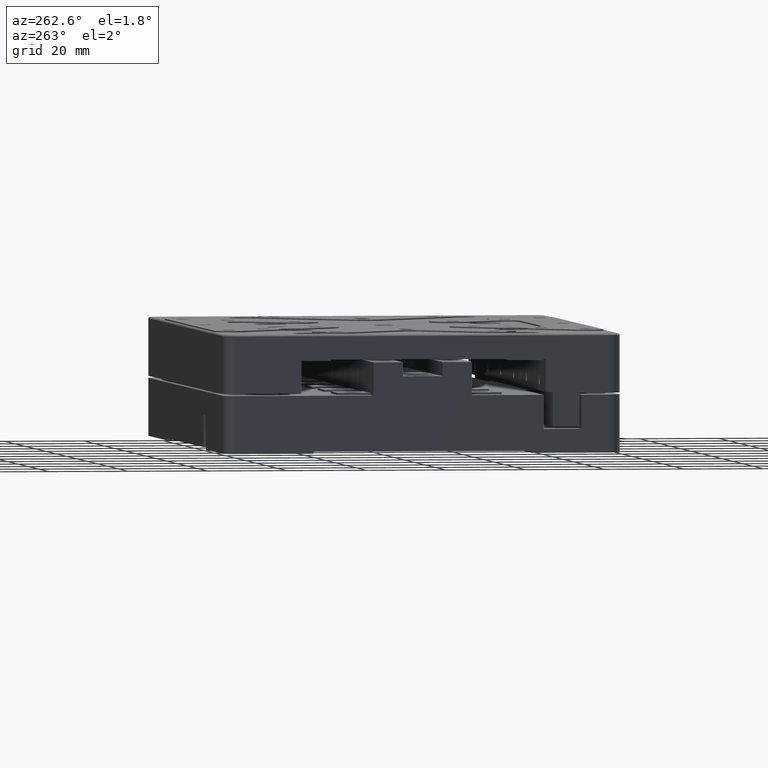
[diagram: clean part render]
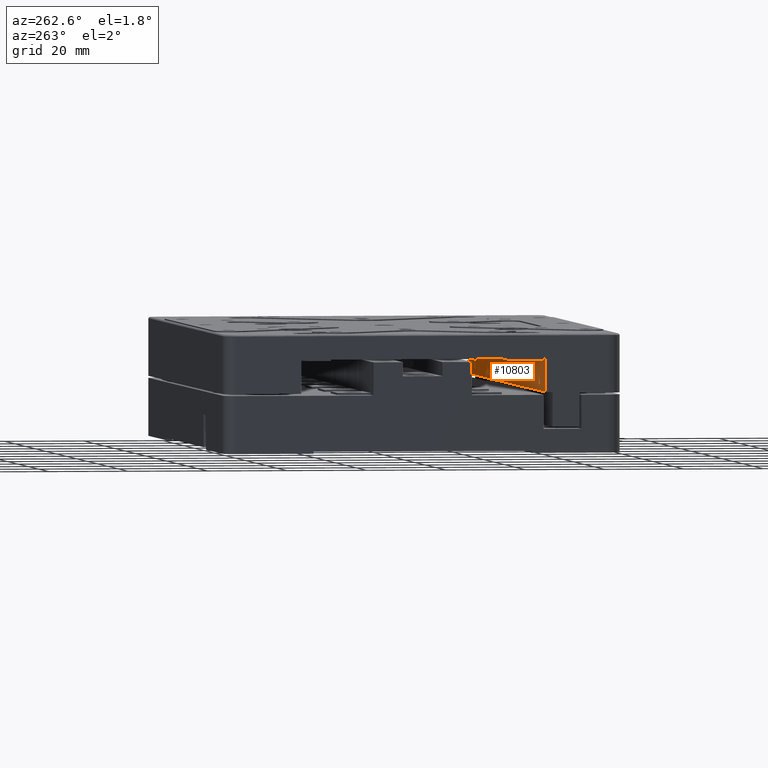
[diagram: same view with one face highlighted and labeled with its STEP entity id]
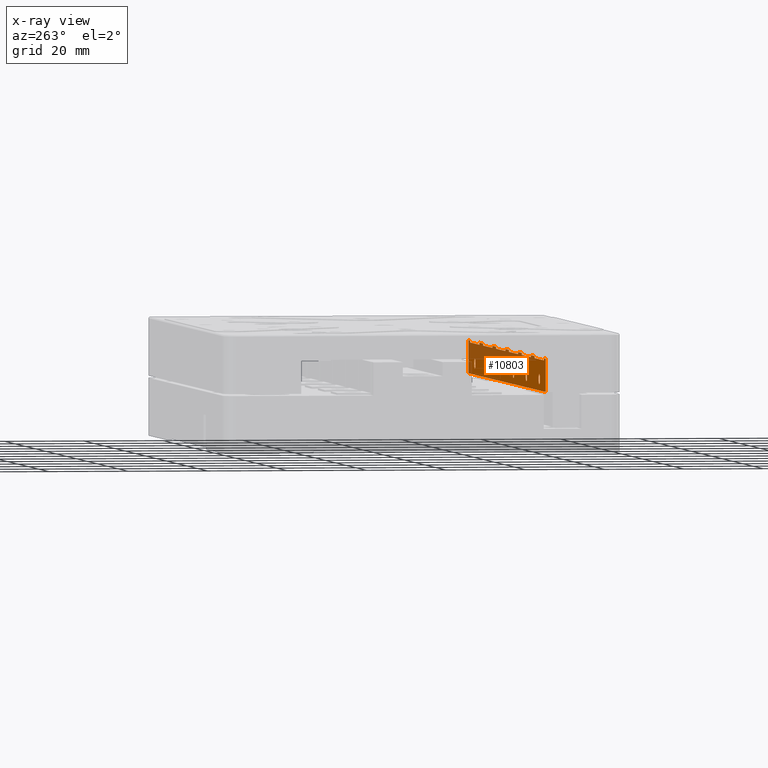
[diagram: x-ray of the same camera — body ghosted, the highlighted face saturated]
A machine part, auxiliary view. The second image highlights one B-rep face of the part: STEP entity #10803.
The next image is the same camera in x-ray: the body ghosted, the highlighted face saturated — about 29% of this face is hidden behind the body in this view.
In plain terms, the highlighted planar face has unit normal (0, 1, 0).
Its self-contained STEP definition (entity closure, byte-faithful):
#64 = LINE ( 'NONE', #10393, #14369 ) ;
#188 = DIRECTION ( 'NONE',  ( -1.000000000000000000, 0.000000000000000000, -0.000000000000000000 ) ) ;
#242 = DIRECTION ( 'NONE',  ( 1.000000000000000000, 0.000000000000000000, -0.000000000000000000 ) ) ;
#261 = CARTESIAN_POINT ( 'NONE',  ( -75.00000000000000000, -31.00000000000000000, 8.500000000000000000 ) ) ;
#298 = CARTESIAN_POINT ( 'NONE',  ( -75.00000000000000000, -31.00000000000000000, 9.000000000000001776 ) ) ;
#316 = EDGE_CURVE ( 'NONE', #2679, #4417, #14301, .T. ) ;
#375 = AXIS2_PLACEMENT_3D ( 'NONE', #10439, #2030, #15779 ) ;
#449 = LINE ( 'NONE', #10671, #16185 ) ;
#465 = AXIS2_PLACEMENT_3D ( 'NONE', #4620, #9954, #8143 ) ;
#557 = ORIENTED_EDGE ( 'NONE', *, *, #19980, .F. ) ;
#726 = VERTEX_POINT ( 'NONE', #12462 ) ;
#835 = VERTEX_POINT ( 'NONE', #3231 ) ;
#958 = EDGE_CURVE ( 'NONE', #19620, #16150, #14110, .T. ) ;
#986 = VERTEX_POINT ( 'NONE', #7913 ) ;
#1027 = ORIENTED_EDGE ( 'NONE', *, *, #6979, .F. ) ;
#1146 = DIRECTION ( 'NONE',  ( -1.000000000000000000, 0.000000000000000000, -0.000000000000000000 ) ) ;
#1425 = LINE ( 'NONE', #15276, #15694 ) ;
#1429 = EDGE_CURVE ( 'NONE', #726, #14277, #19222, .T. ) ;
#1438 = CARTESIAN_POINT ( 'NONE',  ( -71.50000000000001421, -31.00000000000000000, 9.000000000000001776 ) ) ;
#1511 = CARTESIAN_POINT ( 'NONE',  ( 75.00000000000000000, -31.00000000000000000, 9.000000000000001776 ) ) ;
#1542 = CARTESIAN_POINT ( 'NONE',  ( -75.00000000000000000, -31.00000000000000000, 0.6999999999999999556 ) ) ;
#1598 = FACE_BOUND ( 'NONE', #9326, .T. ) ;
#1788 = ORIENTED_EDGE ( 'NONE', *, *, #1429, .T. ) ;
#1799 = ORIENTED_EDGE ( 'NONE', *, *, #21870, .T. ) ;
#1824 = FACE_BOUND ( 'NONE', #12775, .T. ) ;
#1886 = CARTESIAN_POINT ( 'NONE',  ( 62.50000000000000000, -31.00000000000000000, 2.250000000000000444 ) ) ;
#1949 = VECTOR ( 'NONE', #4679, 1000.000000000000000 ) ;
#2030 = DIRECTION ( 'NONE',  ( 0.000000000000000000, -1.000000000000000000, 0.000000000000000000 ) ) ;
#2038 = DIRECTION ( 'NONE',  ( -0.000000000000000000, 0.000000000000000000, -1.000000000000000000 ) ) ;
#2169 = AXIS2_PLACEMENT_3D ( 'NONE', #19275, #21296, #2330 ) ;
#2179 = LINE ( 'NONE', #5706, #8593 ) ;
#2285 = VERTEX_POINT ( 'NONE', #7108 ) ;
#2293 = VECTOR ( 'NONE', #16498, 1000.000000000000000 ) ;
#2311 = EDGE_CURVE ( 'NONE', #4061, #4061, #22104, .T. ) ;
#2330 = DIRECTION ( 'NONE',  ( 0.000000000000000000, 0.000000000000000000, -1.000000000000000000 ) ) ;
#2507 = CARTESIAN_POINT ( 'NONE',  ( -75.00000000000000000, -31.00000000000000000, 9.000000000000001776 ) ) ;
#2576 = VERTEX_POINT ( 'NONE', #20386 ) ;
#2583 = EDGE_CURVE ( 'NONE', #5188, #3755, #22078, .T. ) ;
#2679 = VERTEX_POINT ( 'NONE', #12495 ) ;
#2744 = LINE ( 'NONE', #2853, #13094 ) ;
#2853 = CARTESIAN_POINT ( 'NONE',  ( -3.500000000000003109, -31.00000000000000000, 0.5000000000000000000 ) ) ;
#2964 = CARTESIAN_POINT ( 'NONE',  ( -21.50000000000000355, -31.00000000000000000, 8.500000000000000000 ) ) ;
#2969 = CARTESIAN_POINT ( 'NONE',  ( 21.50000000000000355, -31.00000000000000000, 8.500000000000000000 ) ) ;
#2997 = ORIENTED_EDGE ( 'NONE', *, *, #8430, .T. ) ;
#3179 = ORIENTED_EDGE ( 'NONE', *, *, #16969, .T. ) ;
#3231 = CARTESIAN_POINT ( 'NONE',  ( 53.50000000000000711, -31.00000000000000000, 9.000000000000001776 ) ) ;
#3314 = FACE_BOUND ( 'NONE', #10191, .T. ) ;
#3324 = ORIENTED_EDGE ( 'NONE', *, *, #16865, .T. ) ;
#3364 = CARTESIAN_POINT ( 'NONE',  ( -28.49999999999999645, -31.00000000000000000, 9.000000000000001776 ) ) ;
#3380 = VECTOR ( 'NONE', #12177, 1000.000000000000000 ) ;
#3405 = CARTESIAN_POINT ( 'NONE',  ( -53.50000000000000000, -31.00000000000000000, 0.5000000000000000000 ) ) ;
#3426 = DIRECTION ( 'NONE',  ( -0.000000000000000000, 0.000000000000000000, -1.000000000000000000 ) ) ;
#3533 = FACE_BOUND ( 'NONE', #7468, .T. ) ;
#3559 = DIRECTION ( 'NONE',  ( -1.000000000000000000, 0.000000000000000000, -0.000000000000000000 ) ) ;
#3642 = VECTOR ( 'NONE', #6310, 1000.000000000000000 ) ;
#3755 = VERTEX_POINT ( 'NONE', #18238 ) ;
#3882 = VECTOR ( 'NONE', #3426, 1000.000000000000000 ) ;
#4061 = VERTEX_POINT ( 'NONE', #7246 ) ;
#4088 = VERTEX_POINT ( 'NONE', #2969 ) ;
#4107 = ORIENTED_EDGE ( 'NONE', *, *, #7828, .T. ) ;
#4158 = VECTOR ( 'NONE', #16368, 1000.000000000000000 ) ;
#4417 = VERTEX_POINT ( 'NONE', #19653 ) ;
#4456 = VERTEX_POINT ( 'NONE', #7932 ) ;
#4466 = ORIENTED_EDGE ( 'NONE', *, *, #2311, .T. ) ;
#4546 = VECTOR ( 'NONE', #14276, 1000.000000000000000 ) ;
#4588 = DIRECTION ( 'NONE',  ( 0.000000000000000000, -0.000000000000000000, 1.000000000000000000 ) ) ;
#4601 = VECTOR ( 'NONE', #1146, 1000.000000000000000 ) ;
#4620 = CARTESIAN_POINT ( 'NONE',  ( -62.50000000000000000, -31.00000000000000000, 3.500000000000000000 ) ) ;
#4668 = LINE ( 'NONE', #2507, #4158 ) ;
#4679 = DIRECTION ( 'NONE',  ( -0.000000000000000000, 0.000000000000000000, -1.000000000000000000 ) ) ;
#4691 = ORIENTED_EDGE ( 'NONE', *, *, #5257, .T. ) ;
#5057 = EDGE_CURVE ( 'NONE', #11553, #14841, #11038, .T. ) ;
#5100 = CIRCLE ( 'NONE', #375, 1.249999999999999778 ) ;
#5134 = FACE_BOUND ( 'NONE', #6382, .T. ) ;
#5159 = LINE ( 'NONE', #11001, #9825 ) ;
#5161 = ORIENTED_EDGE ( 'NONE', *, *, #10584, .T. ) ;
#5188 = VERTEX_POINT ( 'NONE', #8081 ) ;
#5227 = LINE ( 'NONE', #10326, #22303 ) ;
#5257 = EDGE_CURVE ( 'NONE', #4456, #17673, #2744, .T. ) ;
#5467 = PLANE ( 'NONE',  #9704 ) ;
#5557 = CIRCLE ( 'NONE', #18239, 1.249999999999999778 ) ;
#5706 = CARTESIAN_POINT ( 'NONE',  ( 71.50000000000002842, -31.00000000000000000, 0.5000000000000000000 ) ) ;
#5733 = EDGE_CURVE ( 'NONE', #9952, #10244, #9870, .T. ) ;
#5847 = EDGE_LOOP ( 'NONE', ( #21734, #18535, #3324, #6982, #1027, #22134, #2997, #9752, #22410, #10998, #7182, #3179, #557, #6379, #10167, #4691, #5906, #21101, #21706, #9804, #20064, #20364, #1788, #1799, #10631, #11173, #9981, #5161 ) ) ;
#5906 = ORIENTED_EDGE ( 'NONE', *, *, #15430, .F. ) ;
#5909 = CARTESIAN_POINT ( 'NONE',  ( -75.00000000000000000, -31.00000000000000000, 8.500000000000000000 ) ) ;
#5957 = CARTESIAN_POINT ( 'NONE',  ( 75.00000000000000000, -31.00000000000000000, 0.000000000000000000 ) ) ;
#6052 = VECTOR ( 'NONE', #4588, 1000.000000000000000 ) ;
#6145 = EDGE_CURVE ( 'NONE', #986, #986, #6996, .T. ) ;
#6310 = DIRECTION ( 'NONE',  ( 1.000000000000000000, 0.000000000000000000, -0.000000000000000000 ) ) ;
#6379 = ORIENTED_EDGE ( 'NONE', *, *, #958, .T. ) ;
#6382 = EDGE_LOOP ( 'NONE', ( #4107 ) ) ;
#6486 = CARTESIAN_POINT ( 'NONE',  ( -75.00000000000000000, -31.00000000000000000, 9.000000000000001776 ) ) ;
#6660 = VERTEX_POINT ( 'NONE', #7495 ) ;
#6804 = DIRECTION ( 'NONE',  ( 0.000000000000000000, -0.000000000000000000, 1.000000000000000000 ) ) ;
#6979 = EDGE_CURVE ( 'NONE', #7461, #4417, #5227, .T. ) ;
#6982 = ORIENTED_EDGE ( 'NONE', *, *, #316, .T. ) ;
#6996 = CIRCLE ( 'NONE', #465, 1.249999999999999778 ) ;
#7108 = CARTESIAN_POINT ( 'NONE',  ( 75.00000000000000000, -31.00000000000000000, 0.6999999999999999556 ) ) ;
#7182 = ORIENTED_EDGE ( 'NONE', *, *, #2583, .T. ) ;
#7199 = EDGE_CURVE ( 'NONE', #7461, #13367, #12569, .T. ) ;
#7246 = CARTESIAN_POINT ( 'NONE',  ( 12.50000000000000000, -31.00000000000000000, 2.250000000000000444 ) ) ;
#7383 = DIRECTION ( 'NONE',  ( 0.000000000000000000, -1.000000000000000000, 0.000000000000000000 ) ) ;
#7461 = VERTEX_POINT ( 'NONE', #1438 ) ;
#7466 = CARTESIAN_POINT ( 'NONE',  ( -71.50000000000001421, -31.00000000000000000, 0.5000000000000000000 ) ) ;
#7468 = EDGE_LOOP ( 'NONE', ( #20121 ) ) ;
#7495 = CARTESIAN_POINT ( 'NONE',  ( 46.50000000000000000, -31.00000000000000000, 9.000000000000001776 ) ) ;
#7604 = DIRECTION ( 'NONE',  ( 0.000000000000000000, 0.000000000000000000, -1.000000000000000000 ) ) ;
#7828 = EDGE_CURVE ( 'NONE', #20854, #20854, #5100, .T. ) ;
#7913 = CARTESIAN_POINT ( 'NONE',  ( -62.50000000000000000, -31.00000000000000000, 2.250000000000000444 ) ) ;
#7932 = CARTESIAN_POINT ( 'NONE',  ( -3.500000000000001332, -31.00000000000000000, 8.500000000000000000 ) ) ;
#8011 = CARTESIAN_POINT ( 'NONE',  ( -75.00000000000000000, -31.00000000000000000, 8.500000000000000000 ) ) ;
#8081 = CARTESIAN_POINT ( 'NONE',  ( -46.50000000000000000, -31.00000000000000000, 8.500000000000000000 ) ) ;
#8143 = DIRECTION ( 'NONE',  ( 0.000000000000000000, 0.000000000000000000, -1.000000000000000000 ) ) ;
#8216 = VECTOR ( 'NONE', #21471, 1000.000000000000000 ) ;
#8222 = DIRECTION ( 'NONE',  ( 0.000000000000000000, 0.000000000000000000, -1.000000000000000000 ) ) ;
#8272 = CARTESIAN_POINT ( 'NONE',  ( -46.50000000000000000, -31.00000000000000000, 0.5000000000000000000 ) ) ;
#8300 = AXIS2_PLACEMENT_3D ( 'NONE', #15586, #22396, #8324 ) ;
#8324 = DIRECTION ( 'NONE',  ( 0.000000000000000000, 0.000000000000000000, -1.000000000000000000 ) ) ;
#8430 = EDGE_CURVE ( 'NONE', #13367, #9952, #18240, .T. ) ;
#8522 = FACE_OUTER_BOUND ( 'NONE', #5847, .T. ) ;
#8593 = VECTOR ( 'NONE', #12609, 1000.000000000000000 ) ;
#8631 = DIRECTION ( 'NONE',  ( 0.000000000000000000, 1.000000000000000000, 0.000000000000000000 ) ) ;
#8734 = CARTESIAN_POINT ( 'NONE',  ( -21.50000000000000355, -31.00000000000000000, 9.000000000000001776 ) ) ;
#8890 = ORIENTED_EDGE ( 'NONE', *, *, #19279, .T. ) ;
#8926 = LINE ( 'NONE', #298, #22430 ) ;
#9235 = VERTEX_POINT ( 'NONE', #14311 ) ;
#9326 = EDGE_LOOP ( 'NONE', ( #8890 ) ) ;
#9370 = CARTESIAN_POINT ( 'NONE',  ( -75.00000000000000000, -31.00000000000000000, 8.500000000000000000 ) ) ;
#9404 = EDGE_CURVE ( 'NONE', #835, #6660, #8926, .T. ) ;
#9581 = CARTESIAN_POINT ( 'NONE',  ( 46.50000000000000000, -31.00000000000000000, 0.5000000000000000000 ) ) ;
#9704 = AXIS2_PLACEMENT_3D ( 'NONE', #12368, #8631, #15563 ) ;
#9752 = ORIENTED_EDGE ( 'NONE', *, *, #5733, .T. ) ;
#9784 = LINE ( 'NONE', #21826, #1949 ) ;
#9804 = ORIENTED_EDGE ( 'NONE', *, *, #14669, .T. ) ;
#9825 = VECTOR ( 'NONE', #3559, 1000.000000000000000 ) ;
#9870 = LINE ( 'NONE', #3405, #19682 ) ;
#9952 = VERTEX_POINT ( 'NONE', #20735 ) ;
#9954 = DIRECTION ( 'NONE',  ( 0.000000000000000000, -1.000000000000000000, 0.000000000000000000 ) ) ;
#9979 = LINE ( 'NONE', #8272, #12523 ) ;
#9981 = ORIENTED_EDGE ( 'NONE', *, *, #5057, .T. ) ;
#10167 = ORIENTED_EDGE ( 'NONE', *, *, #17531, .T. ) ;
#10185 = VERTEX_POINT ( 'NONE', #1511 ) ;
#10191 = EDGE_LOOP ( 'NONE', ( #17339 ) ) ;
#10244 = VERTEX_POINT ( 'NONE', #17076 ) ;
#10326 = CARTESIAN_POINT ( 'NONE',  ( -75.00000000000000000, -31.00000000000000000, 9.000000000000001776 ) ) ;
#10393 = CARTESIAN_POINT ( 'NONE',  ( -75.00000000000000000, -31.00000000000000000, 9.000000000000001776 ) ) ;
#10439 = CARTESIAN_POINT ( 'NONE',  ( 62.50000000000000000, -31.00000000000000000, 3.500000000000000000 ) ) ;
#10584 = EDGE_CURVE ( 'NONE', #14841, #17258, #2179, .T. ) ;
#10631 = ORIENTED_EDGE ( 'NONE', *, *, #9404, .F. ) ;
#10635 = EDGE_CURVE ( 'NONE', #10185, #17258, #14873, .T. ) ;
#10671 = CARTESIAN_POINT ( 'NONE',  ( 28.49999999999999645, -31.00000000000000000, 0.5000000000000000000 ) ) ;
#10790 = EDGE_CURVE ( 'NONE', #835, #11553, #20568, .T. ) ;
#10803 = ADVANCED_FACE ( 'NONE', ( #5134, #18881, #3533, #3314, #1824, #1598, #8522 ), #5467, .T. ) ;
#10886 = EDGE_CURVE ( 'NONE', #15598, #4088, #21120, .T. ) ;
#10887 = EDGE_CURVE ( 'NONE', #2576, #726, #449, .T. ) ;
#10927 = CARTESIAN_POINT ( 'NONE',  ( 3.500000000000001332, -31.00000000000000000, 9.000000000000001776 ) ) ;
#10968 = CARTESIAN_POINT ( 'NONE',  ( 21.50000000000000355, -31.00000000000000000, 0.5000000000000000000 ) ) ;
#10998 = ORIENTED_EDGE ( 'NONE', *, *, #21030, .T. ) ;
#11000 = DIRECTION ( 'NONE',  ( 1.000000000000000000, 0.000000000000000000, -0.000000000000000000 ) ) ;
#11001 = CARTESIAN_POINT ( 'NONE',  ( -75.00000000000000000, -31.00000000000000000, 9.000000000000001776 ) ) ;
#11038 = LINE ( 'NONE', #12735, #21446 ) ;
#11173 = ORIENTED_EDGE ( 'NONE', *, *, #10790, .T. ) ;
#11237 = CARTESIAN_POINT ( 'NONE',  ( 37.50000000000000000, -31.00000000000000000, 3.500000000000000000 ) ) ;
#11537 = VERTEX_POINT ( 'NONE', #15366 ) ;
#11553 = VERTEX_POINT ( 'NONE', #15253 ) ;
#11752 = ORIENTED_EDGE ( 'NONE', *, *, #6145, .T. ) ;
#11865 = DIRECTION ( 'NONE',  ( -1.000000000000000000, -0.000000000000000000, 0.000000000000000000 ) ) ;
#11930 = CIRCLE ( 'NONE', #8300, 1.249999999999999778 ) ;
#12113 = EDGE_CURVE ( 'NONE', #2285, #10185, #18555, .T. ) ;
#12177 = DIRECTION ( 'NONE',  ( 1.000000000000000000, 0.000000000000000000, -0.000000000000000000 ) ) ;
#12298 = DIRECTION ( 'NONE',  ( -0.000000000000000000, 0.000000000000000000, -1.000000000000000000 ) ) ;
#12368 = CARTESIAN_POINT ( 'NONE',  ( -75.00000000000000000, -31.00000000000000000, 0.5000000000000000000 ) ) ;
#12462 = CARTESIAN_POINT ( 'NONE',  ( 28.49999999999999645, -31.00000000000000000, 8.500000000000000000 ) ) ;
#12495 = CARTESIAN_POINT ( 'NONE',  ( -75.00000000000000000, -31.00000000000000000, 0.6999999999999999556 ) ) ;
#12523 = VECTOR ( 'NONE', #18625, 1000.000000000000000 ) ;
#12569 = LINE ( 'NONE', #7466, #4546 ) ;
#12578 = VECTOR ( 'NONE', #21419, 1000.000000000000000 ) ;
#12609 = DIRECTION ( 'NONE',  ( 0.000000000000000000, -0.000000000000000000, 1.000000000000000000 ) ) ;
#12735 = CARTESIAN_POINT ( 'NONE',  ( -75.00000000000000000, -31.00000000000000000, 8.500000000000000000 ) ) ;
#12775 = EDGE_LOOP ( 'NONE', ( #4466 ) ) ;
#12838 = DIRECTION ( 'NONE',  ( 0.000000000000000000, -0.000000000000000000, 1.000000000000000000 ) ) ;
#13035 = CARTESIAN_POINT ( 'NONE',  ( 3.500000000000001332, -31.00000000000000000, 8.500000000000000000 ) ) ;
#13094 = VECTOR ( 'NONE', #12838, 1000.000000000000000 ) ;
#13250 = CARTESIAN_POINT ( 'NONE',  ( 46.50000000000000000, -31.00000000000000000, 8.500000000000000000 ) ) ;
#13367 = VERTEX_POINT ( 'NONE', #14695 ) ;
#13417 = VECTOR ( 'NONE', #18134, 1000.000000000000000 ) ;
#13530 = EDGE_CURVE ( 'NONE', #22073, #22073, #11930, .T. ) ;
#13600 = DIRECTION ( 'NONE',  ( -1.000000000000000000, 0.000000000000000000, -0.000000000000000000 ) ) ;
#13625 = CARTESIAN_POINT ( 'NONE',  ( 53.50000000000000711, -31.00000000000000000, 0.5000000000000000000 ) ) ;
#13999 = VERTEX_POINT ( 'NONE', #14109 ) ;
#14109 = CARTESIAN_POINT ( 'NONE',  ( 37.50000000000000000, -31.00000000000000000, 2.250000000000000444 ) ) ;
#14110 = LINE ( 'NONE', #17534, #16623 ) ;
#14230 = VECTOR ( 'NONE', #11865, 1000.000000000000000 ) ;
#14276 = DIRECTION ( 'NONE',  ( -0.000000000000000000, 0.000000000000000000, -1.000000000000000000 ) ) ;
#14277 = VERTEX_POINT ( 'NONE', #13250 ) ;
#14301 = LINE ( 'NONE', #14528, #8216 ) ;
#14311 = CARTESIAN_POINT ( 'NONE',  ( -46.50000000000000000, -31.00000000000000000, 9.000000000000001776 ) ) ;
#14369 = VECTOR ( 'NONE', #17330, 1000.000000000000000 ) ;
#14480 = LINE ( 'NONE', #10968, #13417 ) ;
#14528 = CARTESIAN_POINT ( 'NONE',  ( -75.00000000000000000, -31.00000000000000000, 0.000000000000000000 ) ) ;
#14669 = EDGE_CURVE ( 'NONE', #4088, #11537, #14480, .T. ) ;
#14695 = CARTESIAN_POINT ( 'NONE',  ( -71.50000000000001421, -31.00000000000000000, 8.500000000000000000 ) ) ;
#14824 = VERTEX_POINT ( 'NONE', #3364 ) ;
#14841 = VERTEX_POINT ( 'NONE', #20507 ) ;
#14873 = LINE ( 'NONE', #6486, #4601 ) ;
#15253 = CARTESIAN_POINT ( 'NONE',  ( 53.50000000000000711, -31.00000000000000000, 8.500000000000000000 ) ) ;
#15276 = CARTESIAN_POINT ( 'NONE',  ( -28.49999999999999645, -31.00000000000000000, 0.5000000000000000000 ) ) ;
#15366 = CARTESIAN_POINT ( 'NONE',  ( 21.50000000000000355, -31.00000000000000000, 9.000000000000001776 ) ) ;
#15430 = EDGE_CURVE ( 'NONE', #18930, #17673, #5159, .T. ) ;
#15534 = LINE ( 'NONE', #15651, #15816 ) ;
#15563 = DIRECTION ( 'NONE',  ( 0.000000000000000000, -0.000000000000000000, 1.000000000000000000 ) ) ;
#15586 = CARTESIAN_POINT ( 'NONE',  ( -37.50000000000000000, -31.00000000000000000, 3.500000000000000000 ) ) ;
#15598 = VERTEX_POINT ( 'NONE', #13035 ) ;
#15651 = CARTESIAN_POINT ( 'NONE',  ( -75.00000000000000000, -31.00000000000000000, 9.000000000000001776 ) ) ;
#15691 = CARTESIAN_POINT ( 'NONE',  ( -75.00000000000000000, -31.00000000000000000, 8.500000000000000000 ) ) ;
#15694 = VECTOR ( 'NONE', #22209, 1000.000000000000000 ) ;
#15779 = DIRECTION ( 'NONE',  ( 0.000000000000000000, 0.000000000000000000, -1.000000000000000000 ) ) ;
#15816 = VECTOR ( 'NONE', #13600, 1000.000000000000000 ) ;
#16042 = DIRECTION ( 'NONE',  ( 1.000000000000000000, 0.000000000000000000, -0.000000000000000000 ) ) ;
#16150 = VERTEX_POINT ( 'NONE', #2964 ) ;
#16185 = VECTOR ( 'NONE', #2038, 1000.000000000000000 ) ;
#16368 = DIRECTION ( 'NONE',  ( -1.000000000000000000, 0.000000000000000000, -0.000000000000000000 ) ) ;
#16498 = DIRECTION ( 'NONE',  ( -0.000000000000000000, -0.000000000000000000, 1.000000000000000000 ) ) ;
#16623 = VECTOR ( 'NONE', #12298, 1000.000000000000000 ) ;
#16865 = EDGE_CURVE ( 'NONE', #2285, #2679, #21878, .T. ) ;
#16904 = EDGE_LOOP ( 'NONE', ( #11752 ) ) ;
#16969 = EDGE_CURVE ( 'NONE', #3755, #14824, #1425, .T. ) ;
#17076 = CARTESIAN_POINT ( 'NONE',  ( -53.50000000000000000, -31.00000000000000000, 9.000000000000001776 ) ) ;
#17258 = VERTEX_POINT ( 'NONE', #20260 ) ;
#17330 = DIRECTION ( 'NONE',  ( -1.000000000000000000, 0.000000000000000000, -0.000000000000000000 ) ) ;
#17339 = ORIENTED_EDGE ( 'NONE', *, *, #18579, .T. ) ;
#17531 = EDGE_CURVE ( 'NONE', #16150, #4456, #20932, .T. ) ;
#17534 = CARTESIAN_POINT ( 'NONE',  ( -21.50000000000000355, -31.00000000000000000, 0.5000000000000000000 ) ) ;
#17673 = VERTEX_POINT ( 'NONE', #17745 ) ;
#17745 = CARTESIAN_POINT ( 'NONE',  ( -3.500000000000001332, -31.00000000000000000, 9.000000000000001776 ) ) ;
#18134 = DIRECTION ( 'NONE',  ( 0.000000000000000000, -0.000000000000000000, 1.000000000000000000 ) ) ;
#18238 = CARTESIAN_POINT ( 'NONE',  ( -28.49999999999999645, -31.00000000000000000, 8.500000000000000000 ) ) ;
#18239 = AXIS2_PLACEMENT_3D ( 'NONE', #20597, #20154, #8222 ) ;
#18240 = LINE ( 'NONE', #9370, #12578 ) ;
#18269 = AXIS2_PLACEMENT_3D ( 'NONE', #11237, #7383, #7604 ) ;
#18341 = CARTESIAN_POINT ( 'NONE',  ( -37.50000000000000000, -31.00000000000000000, 2.250000000000000444 ) ) ;
#18535 = ORIENTED_EDGE ( 'NONE', *, *, #12113, .F. ) ;
#18555 = LINE ( 'NONE', #5957, #2293 ) ;
#18579 = EDGE_CURVE ( 'NONE', #19689, #19689, #5557, .T. ) ;
#18625 = DIRECTION ( 'NONE',  ( -0.000000000000000000, 0.000000000000000000, -1.000000000000000000 ) ) ;
#18881 = FACE_BOUND ( 'NONE', #16904, .T. ) ;
#18930 = VERTEX_POINT ( 'NONE', #10927 ) ;
#18992 = EDGE_CURVE ( 'NONE', #18930, #15598, #9784, .T. ) ;
#19222 = LINE ( 'NONE', #15691, #21344 ) ;
#19275 = CARTESIAN_POINT ( 'NONE',  ( 12.50000000000000000, -31.00000000000000000, 3.500000000000000000 ) ) ;
#19279 = EDGE_CURVE ( 'NONE', #13999, #13999, #20462, .T. ) ;
#19620 = VERTEX_POINT ( 'NONE', #8734 ) ;
#19653 = CARTESIAN_POINT ( 'NONE',  ( -75.00000000000000000, -31.00000000000000000, 9.000000000000001776 ) ) ;
#19682 = VECTOR ( 'NONE', #6804, 1000.000000000000000 ) ;
#19689 = VERTEX_POINT ( 'NONE', #21162 ) ;
#19980 = EDGE_CURVE ( 'NONE', #19620, #14824, #4668, .T. ) ;
#20064 = ORIENTED_EDGE ( 'NONE', *, *, #21201, .F. ) ;
#20121 = ORIENTED_EDGE ( 'NONE', *, *, #13530, .T. ) ;
#20153 = LINE ( 'NONE', #9581, #6052 ) ;
#20154 = DIRECTION ( 'NONE',  ( 0.000000000000000000, -1.000000000000000000, 0.000000000000000000 ) ) ;
#20260 = CARTESIAN_POINT ( 'NONE',  ( 71.50000000000001421, -31.00000000000000000, 9.000000000000001776 ) ) ;
#20364 = ORIENTED_EDGE ( 'NONE', *, *, #10887, .T. ) ;
#20386 = CARTESIAN_POINT ( 'NONE',  ( 28.49999999999999645, -31.00000000000000000, 9.000000000000001776 ) ) ;
#20462 = CIRCLE ( 'NONE', #18269, 1.249999999999999778 ) ;
#20507 = CARTESIAN_POINT ( 'NONE',  ( 71.50000000000001421, -31.00000000000000000, 8.500000000000000000 ) ) ;
#20568 = LINE ( 'NONE', #13625, #3882 ) ;
#20597 = CARTESIAN_POINT ( 'NONE',  ( -12.50000000000000000, -31.00000000000000000, 3.500000000000000000 ) ) ;
#20671 = DIRECTION ( 'NONE',  ( -1.000000000000000000, 0.000000000000000000, -0.000000000000000000 ) ) ;
#20735 = CARTESIAN_POINT ( 'NONE',  ( -53.50000000000000000, -31.00000000000000000, 8.500000000000000000 ) ) ;
#20854 = VERTEX_POINT ( 'NONE', #1886 ) ;
#20932 = LINE ( 'NONE', #261, #3380 ) ;
#21030 = EDGE_CURVE ( 'NONE', #9235, #5188, #9979, .T. ) ;
#21101 = ORIENTED_EDGE ( 'NONE', *, *, #18992, .T. ) ;
#21120 = LINE ( 'NONE', #5909, #21269 ) ;
#21162 = CARTESIAN_POINT ( 'NONE',  ( -12.50000000000000000, -31.00000000000000000, 2.250000000000000444 ) ) ;
#21201 = EDGE_CURVE ( 'NONE', #2576, #11537, #15534, .T. ) ;
#21269 = VECTOR ( 'NONE', #11000, 1000.000000000000000 ) ;
#21296 = DIRECTION ( 'NONE',  ( 0.000000000000000000, -1.000000000000000000, 0.000000000000000000 ) ) ;
#21344 = VECTOR ( 'NONE', #242, 1000.000000000000000 ) ;
#21419 = DIRECTION ( 'NONE',  ( 1.000000000000000000, 0.000000000000000000, -0.000000000000000000 ) ) ;
#21446 = VECTOR ( 'NONE', #16042, 1000.000000000000000 ) ;
#21471 = DIRECTION ( 'NONE',  ( -0.000000000000000000, -0.000000000000000000, 1.000000000000000000 ) ) ;
#21694 = EDGE_CURVE ( 'NONE', #9235, #10244, #64, .T. ) ;
#21706 = ORIENTED_EDGE ( 'NONE', *, *, #10886, .T. ) ;
#21734 = ORIENTED_EDGE ( 'NONE', *, *, #10635, .F. ) ;
#21826 = CARTESIAN_POINT ( 'NONE',  ( 3.500000000000003109, -31.00000000000000000, 0.5000000000000000000 ) ) ;
#21870 = EDGE_CURVE ( 'NONE', #14277, #6660, #20153, .T. ) ;
#21878 = LINE ( 'NONE', #1542, #14230 ) ;
#22073 = VERTEX_POINT ( 'NONE', #18341 ) ;
#22078 = LINE ( 'NONE', #8011, #3642 ) ;
#22104 = CIRCLE ( 'NONE', #2169, 1.249999999999999778 ) ;
#22134 = ORIENTED_EDGE ( 'NONE', *, *, #7199, .T. ) ;
#22209 = DIRECTION ( 'NONE',  ( 0.000000000000000000, -0.000000000000000000, 1.000000000000000000 ) ) ;
#22303 = VECTOR ( 'NONE', #20671, 1000.000000000000000 ) ;
#22396 = DIRECTION ( 'NONE',  ( 0.000000000000000000, -1.000000000000000000, 0.000000000000000000 ) ) ;
#22410 = ORIENTED_EDGE ( 'NONE', *, *, #21694, .F. ) ;
#22430 = VECTOR ( 'NONE', #188, 1000.000000000000000 ) ;